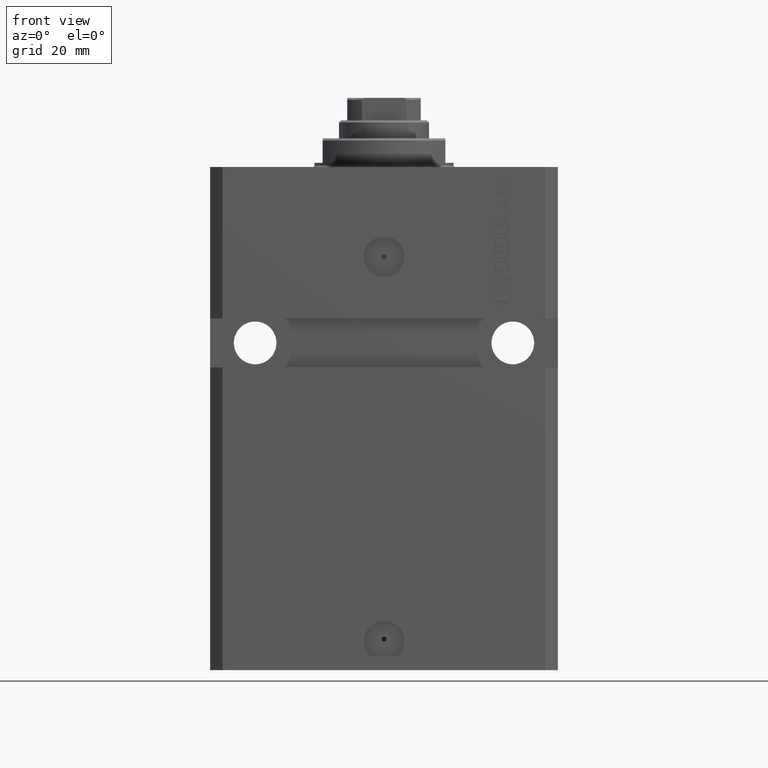
[diagram: clean part render]
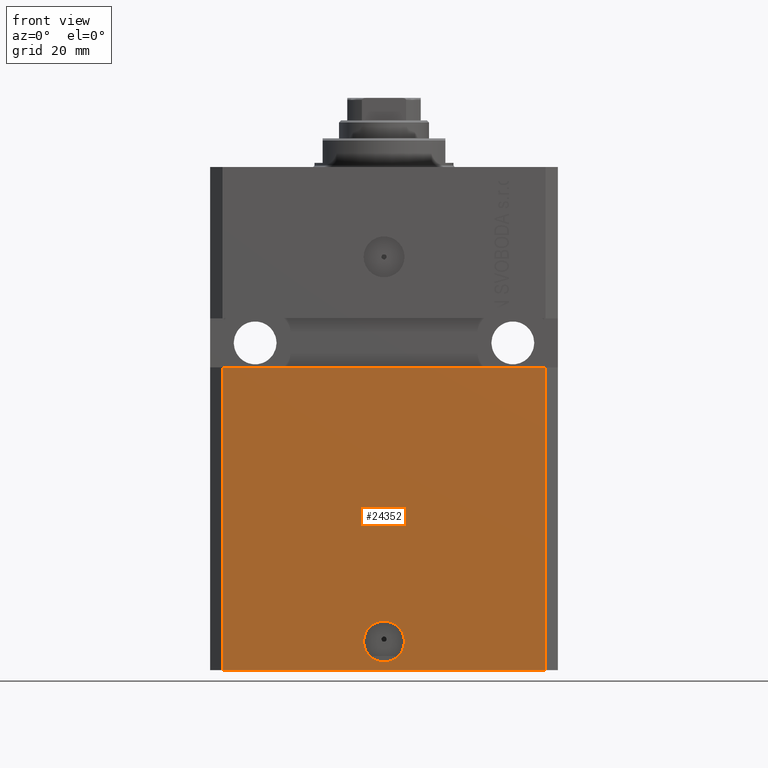
[diagram: same view with one face highlighted and labeled with its STEP entity id]
A machine part, front view. The second image highlights one B-rep face of the part: STEP entity #24352.
In plain terms, the highlighted planar face has unit normal (0, -1, 0).
Its self-contained STEP definition (entity closure, byte-faithful):
#246 = AXIS2_PLACEMENT_3D ( 'NONE', #41803, #27151, #1392 ) ;
#1011 = VERTEX_POINT ( 'NONE', #46933 ) ;
#1392 = DIRECTION ( 'NONE',  ( 0.000000000000000000, -0.000000000000000000, -1.000000000000000000 ) ) ;
#1489 = EDGE_CURVE ( 'NONE', #45404, #12233, #16314, .T. ) ;
#2317 = DIRECTION ( 'NONE',  ( 1.176083712526788232E-16, -1.000000000000000000, 0.000000000000000000 ) ) ;
#2721 = CARTESIAN_POINT ( 'NONE',  ( -5.000000000000006217, -31.50000000000000000, -115.9999999999999858 ) ) ;
#3606 = CARTESIAN_POINT ( 'NONE',  ( -39.50000000000000711, -31.50000000000000000, -123.0000000000000000 ) ) ;
#3903 = VERTEX_POINT ( 'NONE', #25889 ) ;
#4516 = FACE_OUTER_BOUND ( 'NONE', #8167, .T. ) ;
#4534 = AXIS2_PLACEMENT_3D ( 'NONE', #41784, #46352, #27831 ) ;
#4736 = EDGE_CURVE ( 'NONE', #29222, #1011, #6009, .T. ) ;
#6009 = LINE ( 'NONE', #46207, #27804 ) ;
#8167 = EDGE_LOOP ( 'NONE', ( #34700, #35474, #39649, #39582 ) ) ;
#8893 = CARTESIAN_POINT ( 'NONE',  ( -39.50000000000000000, -31.50000000000000711, -48.99999999999999289 ) ) ;
#11127 = ORIENTED_EDGE ( 'NONE', *, *, #1489, .F. ) ;
#12233 = VERTEX_POINT ( 'NONE', #31085 ) ;
#14438 = LINE ( 'NONE', #3606, #17644 ) ;
#16314 = CIRCLE ( 'NONE', #21688, 5.000000000000006217 ) ;
#17117 = VECTOR ( 'NONE', #19722, 1000.000000000000000 ) ;
#17644 = VECTOR ( 'NONE', #36571, 1000.000000000000000 ) ;
#18052 = CARTESIAN_POINT ( 'NONE',  ( -39.50000000000000711, -31.50000000000000000, -123.0000000000000000 ) ) ;
#19203 = PLANE ( 'NONE',  #246 ) ;
#19722 = DIRECTION ( 'NONE',  ( 0.000000000000000000, 0.000000000000000000, 1.000000000000000000 ) ) ;
#20607 = LINE ( 'NONE', #35284, #17117 ) ;
#21648 = LINE ( 'NONE', #18052, #30660 ) ;
#21688 = AXIS2_PLACEMENT_3D ( 'NONE', #42260, #2317, #34574 ) ;
#23272 = EDGE_CURVE ( 'NONE', #40218, #1011, #20607, .T. ) ;
#23783 = CIRCLE ( 'NONE', #4534, 5.000000000000006217 ) ;
#24352 = ADVANCED_FACE ( 'NONE', ( #37475, #4516 ), #19203, .T. ) ;
#25889 = CARTESIAN_POINT ( 'NONE',  ( -39.50000000000000711, -31.50000000000000000, -123.0000000000000000 ) ) ;
#27151 = DIRECTION ( 'NONE',  ( 0.000000000000000000, -1.000000000000000000, 0.000000000000000000 ) ) ;
#27804 = VECTOR ( 'NONE', #38749, 1000.000000000000000 ) ;
#27831 = DIRECTION ( 'NONE',  ( 1.000000000000000000, 0.000000000000000000, 0.000000000000000000 ) ) ;
#29222 = VERTEX_POINT ( 'NONE', #8893 ) ;
#30660 = VECTOR ( 'NONE', #32726, 1000.000000000000000 ) ;
#31085 = CARTESIAN_POINT ( 'NONE',  ( 5.000000000000006217, -31.50000000000000000, -115.9999999999999858 ) ) ;
#32726 = DIRECTION ( 'NONE',  ( 0.000000000000000000, 0.000000000000000000, 1.000000000000000000 ) ) ;
#33723 = EDGE_LOOP ( 'NONE', ( #35014, #11127 ) ) ;
#34574 = DIRECTION ( 'NONE',  ( 1.000000000000000000, 0.000000000000000000, 0.000000000000000000 ) ) ;
#34700 = ORIENTED_EDGE ( 'NONE', *, *, #4736, .F. ) ;
#35014 = ORIENTED_EDGE ( 'NONE', *, *, #47219, .F. ) ;
#35284 = CARTESIAN_POINT ( 'NONE',  ( 39.50000000000000711, -31.50000000000000000, -123.0000000000000000 ) ) ;
#35474 = ORIENTED_EDGE ( 'NONE', *, *, #42371, .F. ) ;
#36180 = CARTESIAN_POINT ( 'NONE',  ( 39.50000000000000711, -31.50000000000000000, -123.0000000000000000 ) ) ;
#36571 = DIRECTION ( 'NONE',  ( 1.000000000000000000, 0.000000000000000000, 0.000000000000000000 ) ) ;
#37475 = FACE_BOUND ( 'NONE', #33723, .T. ) ;
#38749 = DIRECTION ( 'NONE',  ( 1.000000000000000000, 1.632680918566406300E-16, 1.632680918566406300E-16 ) ) ;
#39582 = ORIENTED_EDGE ( 'NONE', *, *, #23272, .T. ) ;
#39649 = ORIENTED_EDGE ( 'NONE', *, *, #44039, .T. ) ;
#40218 = VERTEX_POINT ( 'NONE', #36180 ) ;
#41784 = CARTESIAN_POINT ( 'NONE',  ( 0.000000000000000000, -31.50000000000000000, -115.9999999999999858 ) ) ;
#41803 = CARTESIAN_POINT ( 'NONE',  ( -39.50000000000000711, -31.50000000000000000, -123.0000000000000000 ) ) ;
#42260 = CARTESIAN_POINT ( 'NONE',  ( 0.000000000000000000, -31.50000000000000000, -115.9999999999999858 ) ) ;
#42371 = EDGE_CURVE ( 'NONE', #3903, #29222, #21648, .T. ) ;
#44039 = EDGE_CURVE ( 'NONE', #3903, #40218, #14438, .T. ) ;
#45404 = VERTEX_POINT ( 'NONE', #2721 ) ;
#46207 = CARTESIAN_POINT ( 'NONE',  ( -42.50000000000000000, -31.50000000000000711, -48.99999999999999289 ) ) ;
#46352 = DIRECTION ( 'NONE',  ( 1.176083712526788232E-16, -1.000000000000000000, 0.000000000000000000 ) ) ;
#46933 = CARTESIAN_POINT ( 'NONE',  ( 39.50000000000001421, -31.49999999999999289, -48.99999999999997868 ) ) ;
#47219 = EDGE_CURVE ( 'NONE', #12233, #45404, #23783, .T. ) ;